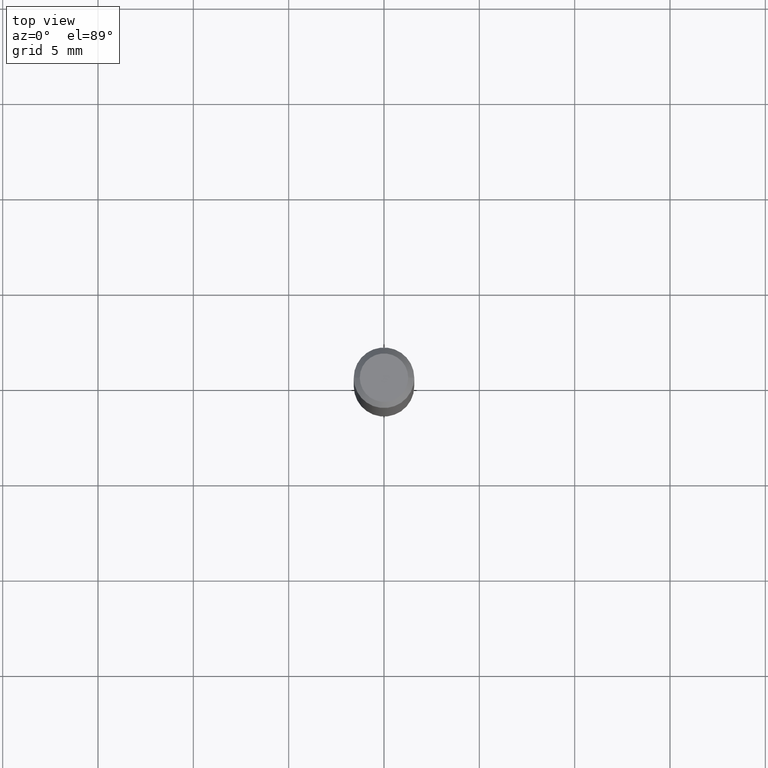
[diagram: clean part render]
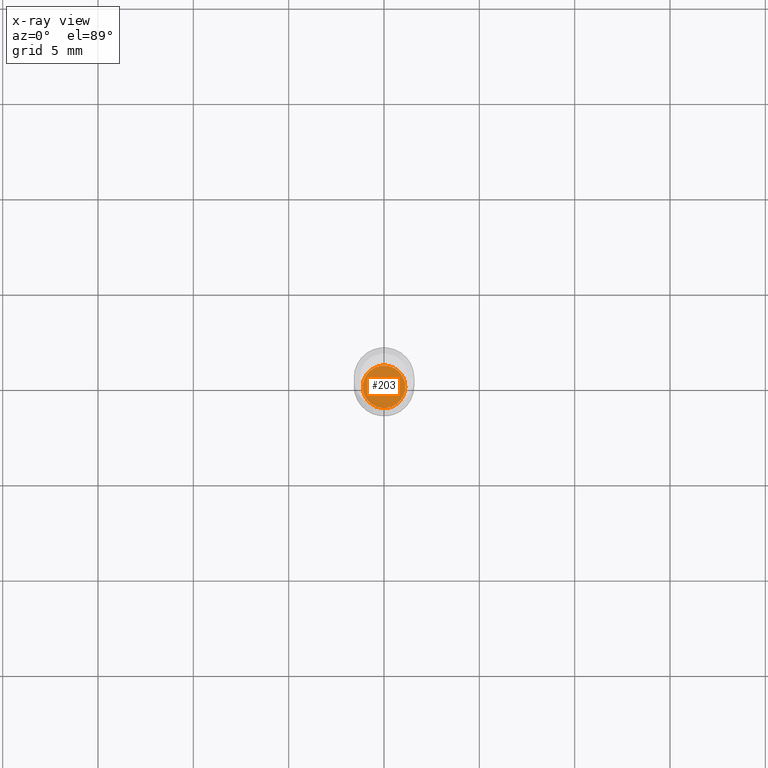
[diagram: x-ray — body ghosted, one internal face saturated and labeled with its STEP entity id]
A machine part, top view, then the same camera in x-ray: the body is ghosted and one INTERNAL B-rep face — a face not visible from any outside direction — is saturated and labeled: STEP entity #203.
In plain terms, the highlighted planar face has unit normal (-0, 0, 1).
Its self-contained STEP definition (entity closure, byte-faithful):
#54 = CARTESIAN_POINT ( 'NONE',  ( 0.04399999999999999745, -4.147879830545655774E-15, -1.100000000000000089 ) ) ;
#60 = AXIS2_PLACEMENT_3D ( 'NONE', #354, #129, #280 ) ;
#78 = DIRECTION ( 'NONE',  ( -2.445468806185136597E-29, 3.491481338843145583E-15, 1.000000000000000000 ) ) ;
#79 = CARTESIAN_POINT ( 'NONE',  ( -0.04399999999999999745, -3.525341441818904541E-15, -1.100000000000000089 ) ) ;
#84 = EDGE_CURVE ( 'NONE', #155, #475, #162, .T. ) ;
#129 = DIRECTION ( 'NONE',  ( -2.445468806185136597E-29, 3.491481338843145583E-15, 1.000000000000000000 ) ) ;
#144 = ORIENTED_EDGE ( 'NONE', *, *, #84, .F. ) ;
#155 = VERTEX_POINT ( 'NONE', #54 ) ;
#162 = CIRCLE ( 'NONE', #434, 0.04399999999999999745 ) ;
#169 = CIRCLE ( 'NONE', #60, 0.04399999999999999745 ) ;
#203 = ADVANCED_FACE ( 'NONE', ( #315 ), #358, .F. ) ;
#223 = ORIENTED_EDGE ( 'NONE', *, *, #241, .F. ) ;
#241 = EDGE_CURVE ( 'NONE', #475, #155, #169, .T. ) ;
#280 = DIRECTION ( 'NONE',  ( 1.000000000000000000, -6.982962677686266711E-15, 0.000000000000000000 ) ) ;
#283 = DIRECTION ( 'NONE',  ( 1.000000000000000000, -6.982962677686265922E-15, 4.876176775795935793E-29 ) ) ;
#315 = FACE_OUTER_BOUND ( 'NONE', #440, .T. ) ;
#321 = DIRECTION ( 'NONE',  ( -2.438088387897960049E-29, 3.491481338843145188E-15, 1.000000000000000000 ) ) ;
#354 = CARTESIAN_POINT ( 'NONE',  ( 2.690015686803650369E-29, -3.840629472727460101E-15, -1.100000000000000089 ) ) ;
#358 = PLANE ( 'NONE',  #385 ) ;
#377 = DIRECTION ( 'NONE',  ( 1.000000000000000000, -6.982962677686266711E-15, 0.000000000000000000 ) ) ;
#385 = AXIS2_PLACEMENT_3D ( 'NONE', #465, #321, #283 ) ;
#416 = CARTESIAN_POINT ( 'NONE',  ( 2.690015686803650369E-29, -3.840629472727460101E-15, -1.100000000000000089 ) ) ;
#434 = AXIS2_PLACEMENT_3D ( 'NONE', #416, #78, #377 ) ;
#440 = EDGE_LOOP ( 'NONE', ( #144, #223 ) ) ;
#465 = CARTESIAN_POINT ( 'NONE',  ( 2.690015686803650369E-29, -3.840629472727460101E-15, -1.100000000000000089 ) ) ;
#475 = VERTEX_POINT ( 'NONE', #79 ) ;